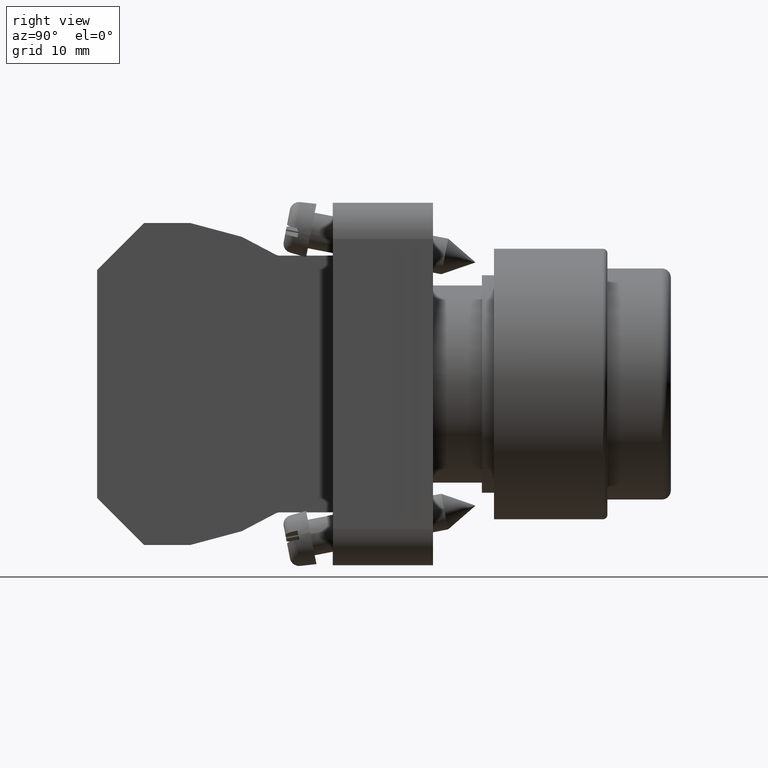
[diagram: clean part render]
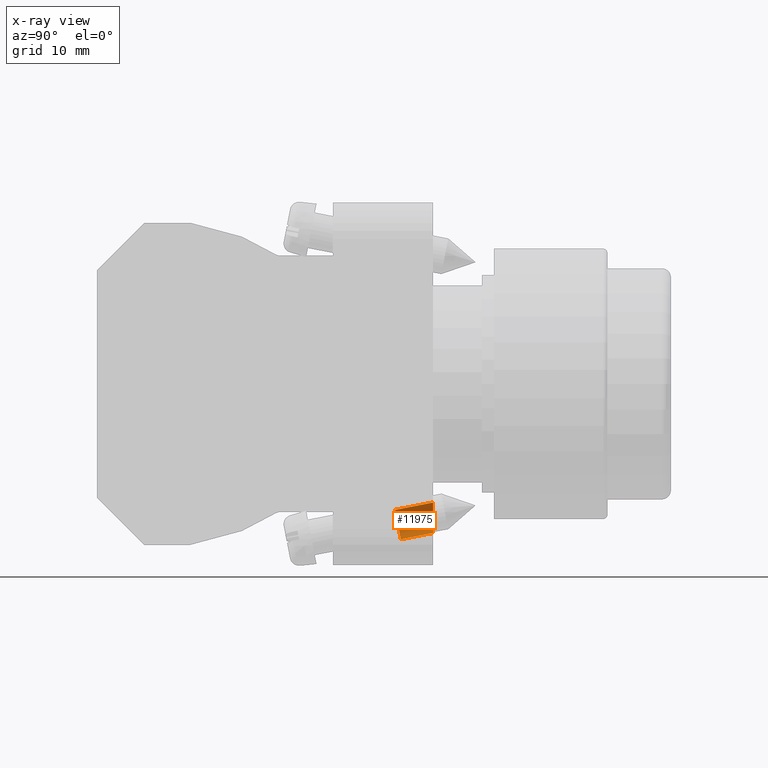
[diagram: x-ray — body ghosted, one internal face saturated and labeled with its STEP entity id]
A machine part, right view, then the same camera in x-ray: the body is ghosted and one INTERNAL B-rep face — a face not visible from any outside direction — is saturated and labeled: STEP entity #11975.
In plain terms, the highlighted cylindrical surface (edge-blend (fillet) strip) has radius 1.65 mm, axis along (0, -0.9816, -0.1908).
Its self-contained STEP definition (entity closure, byte-faithful):
#246 = ORIENTED_EDGE ( 'NONE', *, *, #11477, .T. ) ;
#248 = AXIS2_PLACEMENT_3D ( 'NONE', #5134, #12022, #6106 ) ;
#604 = EDGE_LOOP ( 'NONE', ( #246, #6784, #11020, #732 ) ) ;
#642 = CYLINDRICAL_SURFACE ( 'NONE', #12769, 0.06496062992125949100 ) ;
#732 = ORIENTED_EDGE ( 'NONE', *, *, #8587, .F. ) ;
#875 = VECTOR ( 'NONE', #6739, 39.37007874015748900 ) ;
#1944 = VERTEX_POINT ( 'NONE', #4700 ) ;
#3141 = LINE ( 'NONE', #9107, #8084 ) ;
#4700 = CARTESIAN_POINT ( 'NONE',  ( 0.0000000000000000000, 0.6748911298869648700, -0.1397515300097144600 ) ) ;
#5117 = VERTEX_POINT ( 'NONE', #10349 ) ;
#5134 = CARTESIAN_POINT ( 'NONE',  ( 0.0000000000000000000, 0.6111240097023729100, -0.1521466025440175500 ) ) ;
#5434 = CARTESIAN_POINT ( 'NONE',  ( -0.1299212598425190900, 0.5153732278500187100, 0.0000000000000000000 ) ) ;
#5713 = CARTESIAN_POINT ( 'NONE',  ( 0.0000000000000000000, 0.6111240097023729100, -0.1521466025440174900 ) ) ;
#5767 = CARTESIAN_POINT ( 'NONE',  ( 0.0000000000000000000, 0.6748911298869648700, -0.1397515300097144100 ) ) ;
#6106 = DIRECTION ( 'NONE',  ( 0.0000000000000000000, 0.9816271834476637500, 0.1908089953765457500 ) ) ;
#6253 = CARTESIAN_POINT ( 'NONE',  ( 7.955382750366628100E-018, 0.5153732278500187100, 0.0000000000000000000 ) ) ;
#6681 = CIRCLE ( 'NONE', #248, 0.06496062992125935200 ) ;
#6692 =( BOUNDED_CURVE ( )  B_SPLINE_CURVE ( 3, ( #9347, #8363, #5434, #12332 ),
 .UNSPECIFIED., .F., .F. ) 
 B_SPLINE_CURVE_WITH_KNOTS ( ( 4, 4 ),
 ( 0.0000000000000000000, 3.141592653589793100 ),
 .UNSPECIFIED. ) 
 CURVE ( )  GEOMETRIC_REPRESENTATION_ITEM ( )  RATIONAL_B_SPLINE_CURVE ( ( 1.000000000000000000, 0.3333333333333333700, 0.3333333333333333700, 1.000000000000000000 ) ) 
 REPRESENTATION_ITEM ( '' )  );
#6739 = DIRECTION ( 'NONE',  ( -0.0000000000000000000, 0.1908089953765455300, -0.9816271834476637500 ) ) ;
#6784 = ORIENTED_EDGE ( 'NONE', *, *, #10714, .T. ) ;
#7641 = DIRECTION ( 'NONE',  ( -0.0000000000000000000, 0.1908089953765455500, -0.9816271834476638600 ) ) ;
#8084 = VECTOR ( 'NONE', #10094, 39.37007874015748900 ) ;
#8363 = CARTESIAN_POINT ( 'NONE',  ( -0.1299212598425190900, 0.6477261842812073200, 0.0000000000000000000 ) ) ;
#8587 = EDGE_CURVE ( 'NONE', #5117, #1944, #8779, .T. ) ;
#8779 = LINE ( 'NONE', #5767, #875 ) ;
#9107 = CARTESIAN_POINT ( 'NONE',  ( 7.955382750366628100E-018, 0.5473568895177808300, -0.1645416750783206000 ) ) ;
#9347 = CARTESIAN_POINT ( 'NONE',  ( 0.0000000000000000000, 0.6477261842812073200, 0.0000000000000000000 ) ) ;
#9474 = FACE_OUTER_BOUND ( 'NONE', #604, .T. ) ;
#10094 = DIRECTION ( 'NONE',  ( -0.0000000000000000000, 0.1908089953765455300, -0.9816271834476637500 ) ) ;
#10349 = CARTESIAN_POINT ( 'NONE',  ( 0.0000000000000000000, 0.6477261842812073200, 0.0000000000000000000 ) ) ;
#10714 = EDGE_CURVE ( 'NONE', #12366, #12331, #3141, .T. ) ;
#11020 = ORIENTED_EDGE ( 'NONE', *, *, #11329, .T. ) ;
#11329 = EDGE_CURVE ( 'NONE', #12331, #1944, #6681, .T. ) ;
#11477 = EDGE_CURVE ( 'NONE', #5117, #12366, #6692, .T. ) ;
#11975 = ADVANCED_FACE ( 'NONE', ( #9474 ), #642, .F. ) ;
#12022 = DIRECTION ( 'NONE',  ( -0.0000000000000000000, 0.1908089953765455500, -0.9816271834476638600 ) ) ;
#12131 = CARTESIAN_POINT ( 'NONE',  ( 7.955382750366628100E-018, 0.5473568895177808300, -0.1645416750783206500 ) ) ;
#12331 = VERTEX_POINT ( 'NONE', #12131 ) ;
#12332 = CARTESIAN_POINT ( 'NONE',  ( 7.955382750366628100E-018, 0.5153732278500187100, 0.0000000000000000000 ) ) ;
#12366 = VERTEX_POINT ( 'NONE', #6253 ) ;
#12628 = DIRECTION ( 'NONE',  ( 0.0000000000000000000, 0.9816271834476638600, 0.1908089953765455800 ) ) ;
#12769 = AXIS2_PLACEMENT_3D ( 'NONE', #5713, #7641, #12628 ) ;